MODEL pmsm_dis
KIND model
CONFIG InitFcn = Ts=50e-6;
BLOCK [BusSelector] Bus\nSelector1
  OutputSignals = Electromagnetic Torque <Nm>,Speed <rad/s>,Stator Current <Is_a>
  Ports = [1, 3]
BLOCK [Constant] Constant
  OutDataType = fixdt(1, 16)
  OutScaling = 2^0
BLOCK [SubSystem] PMSM
  FunctionWithSeparateData = off
  MaskCallbackString = ||||||
  MaskDisplay = fprintf('PMSM')
  MaskEnableString = on,on,on,on,on,on,on
  MaskHideContents = off
  MaskIconFrame = on
  MaskIconOpaque = off
  MaskIconRotate = none
  MaskIconUnits = autoscale
  MaskPortRotate = default
  MaskPromptString = Stator Resistance - Rs [ohm] :|Direct axis Inductance - Ld [H]|Quadrature axis Inductance - Lq [H] :|Flux - [Wb]|Rotor Inertia - J [kg-m^2]|Friction Coefficient - B|No: of Poles
  MaskStyleString = edit,edit,edit,edit,edit,edit,edit
  MaskTabNameString = ,,,,,,
  MaskToolTipString = on,on,on,on,on,on,on
  MaskTunableValueString = on,on,on,on,on,on,on
  MaskType = Permanent Magnet Synchronous Motor :
  MaskValueString = 0.4578|0.00333|0.00334|0.171|0.001469|0.0003035|8
  MaskVarAliasString = ,,,,,,
  MaskVariables = Rs=@1;Ld=@2;Lq=@3;flux=@4;J=@5;B=@6;p=@7;
  MaskVisibilityString = on,on,on,on,on,on,on
  MinAlgLoopOccurrences = off
  Opaque = off
  Ports = [4, 1]
  PropExecContextOutsideSubsystem = off
  RTWSystemCode = Auto
  RequestExecContextInheritance = off
BLOCK [SubSystem] PMSM/Id, Iq \nCalculation
  FunctionWithSeparateData = off
  MaskHideContents = off
  MinAlgLoopOccurrences = off
  Opaque = off
  Ports = [3, 2]
  PropExecContextOutsideSubsystem = off
  RTWSystemCode = Auto
  RequestExecContextInheritance = off
BLOCK [Outport] PMSM/Id, Iq \nCalculation/Id
  IconDisplay = Port number
  Port = 2
BLOCK [SubSystem] PMSM/Id, Iq \nCalculation/Id cal
  FunctionWithSeparateData = off
  MaskHideContents = off
  MinAlgLoopOccurrences = off
  Opaque = off
  Ports = [3, 1]
  PropExecContextOutsideSubsystem = off
  RTWSystemCode = Auto
  RequestExecContextInheritance = off
BLOCK [Gain] PMSM/Id, Iq \nCalculation/Id cal/1//Ld
  Gain = 1/Ld
  OutDataType = fixdt(1, 16)
  OutDataTypeMode = Inherit via internal rule
  OutDataTypeStr = Inherit: Inherit via internal rule
  OutScaling = 2^0
  ParamDataTypeStr = Inherit: Inherit via internal rule
  ParameterDataType = fixdt(1, 16)
  ParameterDataTypeMode = Inherit via internal rule
  ParameterScaling = 2^0
  SaturateOnIntegerOverflow = off
BLOCK [Outport] PMSM/Id, Iq \nCalculation/Id cal/Id
  IconDisplay = Port number
BLOCK [Integrator] PMSM/Id, Iq \nCalculation/Id cal/Integrator
  Ports = [1, 1]
BLOCK [Inport] PMSM/Id, Iq \nCalculation/Id cal/Iq
  IconDisplay = Port number
BLOCK [Gain] PMSM/Id, Iq \nCalculation/Id cal/Lq//Ld
  Gain = Lq/Ld
  OutDataType = fixdt(1, 16)
  OutDataTypeMode = Inherit via internal rule
  OutDataTypeStr = Inherit: Inherit via internal rule
  OutScaling = 2^0
  ParamDataTypeStr = Inherit: Inherit via internal rule
  ParameterDataType = fixdt(1, 16)
  ParameterDataTypeMode = Inherit via internal rule
  ParameterScaling = 2^0
  SaturateOnIntegerOverflow = off
BLOCK [Product] PMSM/Id, Iq \nCalculation/Id cal/Product
  InputSameDT = off
  OutDataType = fixdt(1, 16)
  OutDataTypeMode = Inherit via internal rule
  OutDataTypeStr = Inherit: Inherit via internal rule
  OutScaling = 2^0
  Ports = [2, 1]
  SaturateOnIntegerOverflow = off
BLOCK [Gain] PMSM/Id, Iq \nCalculation/Id cal/Rs//Ld
  Gain = Rs/Ld
  OutDataType = fixdt(1, 16)
  OutDataTypeMode = Inherit via internal rule
  OutDataTypeStr = Inherit: Inherit via internal rule
  OutScaling = 2^0
  ParamDataTypeStr = Inherit: Inherit via internal rule
  ParameterDataType = fixdt(1, 16)
  ParameterDataTypeMode = Inherit via internal rule
  ParameterScaling = 2^0
  SaturateOnIntegerOverflow = off
BLOCK [Sum] PMSM/Id, Iq \nCalculation/Id cal/Sum
  InputSameDT = off
  Inputs = -++
  OutDataType = fixdt(1, 16)
  OutDataTypeMode = Inherit via internal rule
  OutDataTypeStr = Inherit: Inherit via internal rule
  OutScaling = 2^0
  Ports = [3, 1]
  SaturateOnIntegerOverflow = off
BLOCK [Inport] PMSM/Id, Iq \nCalculation/Id cal/Vd
  IconDisplay = Port number
  Port = 3
BLOCK [Inport] PMSM/Id, Iq \nCalculation/Id cal/we
  IconDisplay = Port number
  Port = 2
BLOCK [Outport] PMSM/Id, Iq \nCalculation/Iq
  IconDisplay = Port number
BLOCK [SubSystem] PMSM/Id, Iq \nCalculation/Iq cal
  FunctionWithSeparateData = off
  MaskHideContents = off
  MinAlgLoopOccurrences = off
  Opaque = off
  Ports = [3, 1]
  PropExecContextOutsideSubsystem = off
  RTWSystemCode = Auto
  RequestExecContextInheritance = off
BLOCK [Gain] PMSM/Id, Iq \nCalculation/Iq cal/1//Lq
  Gain = 1/Lq
  OutDataType = fixdt(1, 16)
  OutDataTypeMode = Inherit via internal rule
  OutDataTypeStr = Inherit: Inherit via internal rule
  OutScaling = 2^0
  ParamDataTypeStr = Inherit: Inherit via internal rule
  ParameterDataType = fixdt(1, 16)
  ParameterDataTypeMode = Inherit via internal rule
  ParameterScaling = 2^0
  SaturateOnIntegerOverflow = off
BLOCK [Inport] PMSM/Id, Iq \nCalculation/Iq cal/Id
  IconDisplay = Port number
BLOCK [Integrator] PMSM/Id, Iq \nCalculation/Iq cal/Integrator
  Ports = [1, 1]
BLOCK [Outport] PMSM/Id, Iq \nCalculation/Iq cal/Iq
  IconDisplay = Port number
BLOCK [Gain] PMSM/Id, Iq \nCalculation/Iq cal/Ld//Lq
  Gain = Ld/Lq
  OutDataType = fixdt(1, 16)
  OutDataTypeMode = Inherit via internal rule
  OutDataTypeStr = Inherit: Inherit via internal rule
  OutScaling = 2^0
  ParamDataTypeStr = Inherit: Inherit via internal rule
  ParameterDataType = fixdt(1, 16)
  ParameterDataTypeMode = Inherit via internal rule
  ParameterScaling = 2^0
  SaturateOnIntegerOverflow = off
BLOCK [Product] PMSM/Id, Iq \nCalculation/Iq cal/Product
  InputSameDT = off
  OutDataType = fixdt(1, 16)
  OutDataTypeMode = Inherit via internal rule
  OutDataTypeStr = Inherit: Inherit via internal rule
  OutScaling = 2^0
  Ports = [2, 1]
  SaturateOnIntegerOverflow = off
BLOCK [Gain] PMSM/Id, Iq \nCalculation/Iq cal/Rs//Lq
  Gain = Rs/Lq
  OutDataType = fixdt(1, 16)
  OutDataTypeMode = Inherit via internal rule
  OutDataTypeStr = Inherit: Inherit via internal rule
  OutScaling = 2^0
  ParamDataTypeStr = Inherit: Inherit via internal rule
  ParameterDataType = fixdt(1, 16)
  ParameterDataTypeMode = Inherit via internal rule
  ParameterScaling = 2^0
  SaturateOnIntegerOverflow = off
BLOCK [Sum] PMSM/Id, Iq \nCalculation/Iq cal/Sum
  InputSameDT = off
  Inputs = ---+
  OutDataType = fixdt(1, 16)
  OutDataTypeMode = Inherit via internal rule
  OutDataTypeStr = Inherit: Inherit via internal rule
  OutScaling = 2^0
  Ports = [4, 1]
  SaturateOnIntegerOverflow = off
BLOCK [Inport] PMSM/Id, Iq \nCalculation/Iq cal/Vq
  IconDisplay = Port number
  Port = 2
BLOCK [Gain] PMSM/Id, Iq \nCalculation/Iq cal/shi_f//Lq
  Gain = flux/Lq
  OutDataType = fixdt(1, 16)
  OutDataTypeMode = Inherit via internal rule
  OutDataTypeStr = Inherit: Inherit via internal rule
  OutScaling = 2^0
  ParamDataTypeStr = Inherit: Inherit via internal rule
  ParameterDataType = fixdt(1, 16)
  ParameterDataTypeMode = Inherit via internal rule
  ParameterScaling = 2^0
  SaturateOnIntegerOverflow = off
BLOCK [Inport] PMSM/Id, Iq \nCalculation/Iq cal/we
  IconDisplay = Port number
  Port = 3
BLOCK [Inport] PMSM/Id, Iq \nCalculation/Vd
  IconDisplay = Port number
  Port = 2
BLOCK [Inport] PMSM/Id, Iq \nCalculation/Vq
  IconDisplay = Port number
BLOCK [Inport] PMSM/Id, Iq \nCalculation/we
  IconDisplay = Port number
  Port = 3
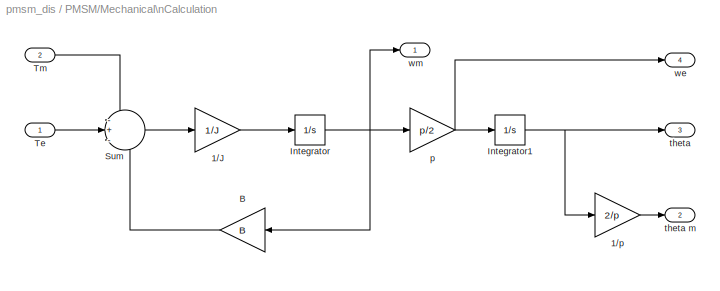
BLOCK [SubSystem] PMSM/Mechanical\nCalculation
  FunctionWithSeparateData = off
  MaskHideContents = off
  MinAlgLoopOccurrences = off
  Opaque = off
  Ports = [2, 4]
  PropExecContextOutsideSubsystem = off
  RTWSystemCode = Auto
  RequestExecContextInheritance = off
BLOCK [Gain] PMSM/Mechanical\nCalculation/1//J
  Gain = 1/J
  OutDataType = fixdt(1, 16)
  OutDataTypeMode = Inherit via internal rule
  OutDataTypeStr = Inherit: Inherit via internal rule
  OutScaling = 2^0
  ParamDataTypeStr = Inherit: Inherit via internal rule
  ParameterDataType = fixdt(1, 16)
  ParameterDataTypeMode = Inherit via internal rule
  ParameterScaling = 2^0
  SaturateOnIntegerOverflow = off
BLOCK [Gain] PMSM/Mechanical\nCalculation/1//p
  Gain = 2/p
  OutDataType = fixdt(1, 16)
  OutDataTypeMode = Inherit via internal rule
  OutDataTypeStr = Inherit: Inherit via internal rule
  OutScaling = 2^0
  ParamDataTypeStr = Inherit: Inherit via internal rule
  ParameterDataType = fixdt(1, 16)
  ParameterDataTypeMode = Inherit via internal rule
  ParameterScaling = 2^0
  SaturateOnIntegerOverflow = off
BLOCK [Gain] PMSM/Mechanical\nCalculation/B
  Gain = B
  OutDataType = fixdt(1, 16)
  OutDataTypeMode = Inherit via internal rule
  OutDataTypeStr = Inherit: Inherit via internal rule
  OutScaling = 2^0
  ParamDataTypeStr = Inherit: Inherit via internal rule
  ParameterDataType = fixdt(1, 16)
  ParameterDataTypeMode = Inherit via internal rule
  ParameterScaling = 2^0
  SaturateOnIntegerOverflow = off
BLOCK [Integrator] PMSM/Mechanical\nCalculation/Integrator
  Ports = [1, 1]
BLOCK [Integrator] PMSM/Mechanical\nCalculation/Integrator1
  Ports = [1, 1]
BLOCK [Sum] PMSM/Mechanical\nCalculation/Sum
  IconShape = round
  InputSameDT = off
  Inputs = -+-
  OutDataType = fixdt(1, 16)
  OutDataTypeMode = Inherit via internal rule
  OutDataTypeStr = Inherit: Inherit via internal rule
  OutScaling = 2^0
  Ports = [3, 1]
  SaturateOnIntegerOverflow = off
BLOCK [Inport] PMSM/Mechanical\nCalculation/Te
  IconDisplay = Port number
  OutDataType = fixdt(1, 16)
  OutScaling = 2^0
BLOCK [Inport] PMSM/Mechanical\nCalculation/Tm
  IconDisplay = Port number
  OutDataType = fixdt(1, 16)
  OutScaling = 2^0
  Port = 2
BLOCK [Gain] PMSM/Mechanical\nCalculation/p
  Gain = p/2
  OutDataType = fixdt(1, 16)
  OutDataTypeMode = Inherit via internal rule
  OutDataTypeStr = Inherit: Inherit via internal rule
  OutScaling = 2^0
  ParamDataTypeStr = Inherit: Inherit via internal rule
  ParameterDataType = fixdt(1, 16)
  ParameterDataTypeMode = Inherit via internal rule
  ParameterScaling = 2^0
  SaturateOnIntegerOverflow = off
BLOCK [Outport] PMSM/Mechanical\nCalculation/theta
  IconDisplay = Port number
  Port = 3
BLOCK [Outport] PMSM/Mechanical\nCalculation/theta m
  IconDisplay = Port number
  Port = 2
BLOCK [Outport] PMSM/Mechanical\nCalculation/we
  IconDisplay = Port number
  Port = 4
BLOCK [Outport] PMSM/Mechanical\nCalculation/wm
  IconDisplay = Port number
BLOCK [Inport] PMSM/Tm
  IconDisplay = Port number
  OutDataType = sfix(16)
  OutScaling = 2^0
BLOCK [SubSystem] PMSM/Torque\nCalculation
  FunctionWithSeparateData = off
  MaskHideContents = off
  MinAlgLoopOccurrences = off
  Opaque = off
  Ports = [2, 1]
  PropExecContextOutsideSubsystem = off
  RTWSystemCode = Auto
  RequestExecContextInheritance = off
BLOCK [Gain] PMSM/Torque\nCalculation/1.5 P
  Gain = 1.5*p/2
  OutDataType = fixdt(1, 16)
  OutDataTypeMode = Inherit via internal rule
  OutDataTypeStr = Inherit: Inherit via internal rule
  OutScaling = 2^0
  ParamDataTypeStr = Inherit: Inherit via internal rule
  ParameterDataType = fixdt(1, 16)
  ParameterDataTypeMode = Inherit via internal rule
  ParameterScaling = 2^0
  SaturateOnIntegerOverflow = off
BLOCK [Inport] PMSM/Torque\nCalculation/Id
  IconDisplay = Port number
  Port = 2
BLOCK [Inport] PMSM/Torque\nCalculation/Iq
  IconDisplay = Port number
BLOCK [Mux] PMSM/Torque\nCalculation/Mux
  DisplayOption = signals
  Inputs = 2
  Ports = [2, 1]
BLOCK [Outport] PMSM/Torque\nCalculation/Te
  IconDisplay = Port number
BLOCK [Fcn] PMSM/Torque\nCalculation/Torque calculation
  Expr = flux*u(1)+(Ld - Lq)*u(1)*u*(2)
BLOCK [Inport] PMSM/Va
  IconDisplay = Port number
  Port = 2
BLOCK [Inport] PMSM/Vb
  IconDisplay = Port number
  Port = 3
BLOCK [Inport] PMSM/Vc
  IconDisplay = Port number
  Port = 4
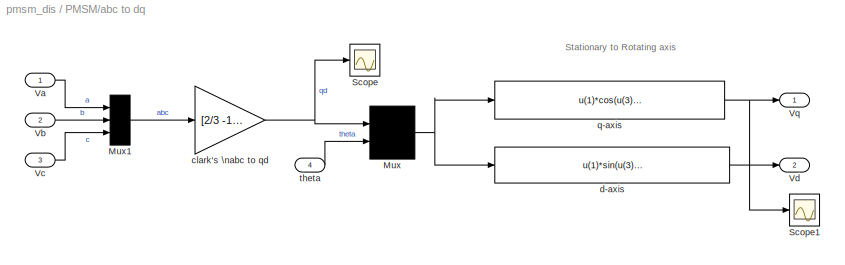
BLOCK [SubSystem] PMSM/abc to dq
  FunctionWithSeparateData = off
  MaskHideContents = off
  MinAlgLoopOccurrences = off
  Opaque = off
  Ports = [4, 2]
  PropExecContextOutsideSubsystem = off
  RTWSystemCode = Auto
  RequestExecContextInheritance = off
BLOCK [Mux] PMSM/abc to dq/Mux
  DisplayOption = signals
  Inputs = 2
  Ports = [2, 1]
BLOCK [Mux] PMSM/abc to dq/Mux1
  DisplayOption = signals
  Inputs = 3
  Ports = [3, 1]
BLOCK [Scope] PMSM/abc to dq/Scope
  DataFormat = StructureWithTime
  Floating = off
  LimitDataPoints = off
  NumInputPorts = 1
  Ports = [1]
  SampleTime = 0
  SaveName = ScopeData1
BLOCK [Scope] PMSM/abc to dq/Scope1
  DataFormat = StructureWithTime
  Floating = off
  LimitDataPoints = off
  NumInputPorts = 1
  Ports = [1]
  SampleTime = 0
  SaveName = ScopeData2
  ZoomMode = xonly
BLOCK [Inport] PMSM/abc to dq/Va
  IconDisplay = Port number
BLOCK [Inport] PMSM/abc to dq/Vb
  IconDisplay = Port number
  Port = 2
BLOCK [Inport] PMSM/abc to dq/Vc
  IconDisplay = Port number
  Port = 3
BLOCK [Outport] PMSM/abc to dq/Vd
  IconDisplay = Port number
  Port = 2
BLOCK [Outport] PMSM/abc to dq/Vq
  IconDisplay = Port number
BLOCK [Gain] PMSM/abc to dq/clark's \nabc to qd
  Gain = [2/3 -1/3 -1/3;0 -1/sqrt(3) 1/sqrt(3)]
  Multiplication = Matrix(K*u)
  OutDataType = fixdt(1, 16)
  OutDataTypeMode = Inherit via internal rule
  OutDataTypeStr = Inherit: Inherit via internal rule
  OutScaling = 2^0
  ParamDataTypeStr = Inherit: Inherit via internal rule
  ParameterDataType = fixdt(1, 16)
  ParameterDataTypeMode = Inherit via internal rule
  ParameterScaling = 2^0
  SaturateOnIntegerOverflow = off
BLOCK [Fcn] PMSM/abc to dq/d-axis
  Expr = u(1)*sin(u(3)) + u(2)*cos(u(3))
BLOCK [Fcn] PMSM/abc to dq/q-axis
  Expr = u(1)*cos(u(3)) - u(2)*sin(u(3))
BLOCK [Inport] PMSM/abc to dq/theta
  IconDisplay = Port number
  Port = 4
BLOCK [SubSystem] PMSM/dq to abc
  FunctionWithSeparateData = off
  MaskHideContents = off
  MinAlgLoopOccurrences = off
  Opaque = off
  Ports = [3, 1]
  PropExecContextOutsideSubsystem = off
  RTWSystemCode = Auto
  RequestExecContextInheritance = off
BLOCK [Outport] PMSM/dq to abc/Iabc
  IconDisplay = Port number
BLOCK [Inport] PMSM/dq to abc/Id_e
  IconDisplay = Port number
  Port = 2
BLOCK [Inport] PMSM/dq to abc/Iq_e
  IconDisplay = Port number
BLOCK [Mux] PMSM/dq to abc/Mux
  DisplayOption = signals
  Inputs = 3
  Ports = [3, 1]
BLOCK [Mux] PMSM/dq to abc/Mux1
  DisplayOption = signals
  Inputs = 2
  Ports = [2, 1]
BLOCK [Gain] PMSM/dq to abc/clark's\ndq to abc
  Gain = [1 0;-1/2 -sqrt(3)/2;-1/2 sqrt(3)/2]
  Multiplication = Matrix(K*u)
  OutDataType = fixdt(1, 16)
  OutDataTypeMode = Inherit via internal rule
  OutDataTypeStr = Inherit: Inherit via internal rule
  OutScaling = 2^0
  ParamDataTypeStr = Inherit: Inherit via internal rule
  ParameterDataType = fixdt(1, 16)
  ParameterDataTypeMode = Inherit via internal rule
  ParameterScaling = 2^0
  SaturateOnIntegerOverflow = off
BLOCK [Fcn] PMSM/dq to abc/d-axis
  Expr = -u(1)*sin(u(3)) + u(2)*cos(u(3))
BLOCK [Fcn] PMSM/dq to abc/q-axis
  Expr = u(1)*cos(u(3)) + u(2)*sin(u(3))
BLOCK [Inport] PMSM/dq to abc/theta
  IconDisplay = Port number
  Port = 3
BLOCK [Outport] PMSM/m
  IconDisplay = Port number
  OutDataType = fixdt(1, 16)
  OutScaling = 2^0
BLOCK [SubSystem] PMSM/measurement
  FunctionWithSeparateData = off
  MaskHideContents = off
  MinAlgLoopOccurrences = off
  Opaque = off
  Ports = [4, 1]
  PropExecContextOutsideSubsystem = off
  RTWSystemCode = Auto
  RequestExecContextInheritance = off
BLOCK [BusCreator] PMSM/measurement/Bus\nCreator
  DisplayOption = bar
  Inputs = 6
  Ports = [6, 1]
BLOCK [Demux] PMSM/measurement/Demux
  DisplayOption = bar
  Outputs = 3
  Ports = [1, 3]
BLOCK [Inport] PMSM/measurement/Iabc
  IconDisplay = Port number
  OutDataType = fixdt(1, 16)
  OutScaling = 2^0
BLOCK [Inport] PMSM/measurement/Te
  IconDisplay = Port number
  OutDataType = fixdt(1, 16)
  OutScaling = 2^0
  Port = 2
BLOCK [Outport] PMSM/measurement/m
  IconDisplay = Port number
  OutDataType = fixdt(1, 16)
  OutScaling = 2^0
BLOCK [Inport] PMSM/measurement/theta_m
  IconDisplay = Port number
  OutDataType = fixdt(1, 16)
  OutScaling = 2^0
  Port = 4
BLOCK [Inport] PMSM/measurement/wm
  IconDisplay = Port number
  OutDataType = fixdt(1, 16)
  OutScaling = 2^0
  Port = 3
BLOCK [Scope] Scope2
  DataFormat = StructureWithTime
  Floating = off
  MaxDataPoints = 5000000
  NumInputPorts = 3
  Ports = [3]
  SampleTime = Ts
  TimeRange = 0.5
  YMax = 80~140~400
  YMin = -80~-20~-300
BLOCK [Sin] Sine Wave
  Amplitude = 220*sqrt(2)
  Bias = 0
  Frequency = 2*pi*50
  Offset = 0
  Phase = 0
  Ports = [0, 1]
  SampleTime = Ts
  Samples = 10
BLOCK [Sin] Sine Wave1
  Amplitude = 220*sqrt(2)
  Bias = 0
  Frequency = 2*pi*50
  Offset = 0
  Phase = -2*pi/3
  Ports = [0, 1]
  SampleTime = Ts
  Samples = 10
BLOCK [Sin] Sine Wave2
  Amplitude = 220*sqrt(2)
  Bias = 0
  Frequency = 2*pi*50
  Offset = 0
  Phase = 2*pi/3
  Ports = [0, 1]
  SampleTime = Ts
  Samples = 10
ANNOTATION (root): BY \nsrikanth dakoju\nemail: <email>
ANNOTATION (root): Permanent Magent Synchronous Motor
ANNOTATION (root): ctrl+u to look under mask
ANNOTATION PMSM/abc to dq: Stationary to Rotating axis
ANNOTATION PMSM/dq to abc: Rotaional to Stationary
LINE Bus\nSelector1:1 -> Scope2:1
LINE Bus\nSelector1:2 -> Scope2:2
LINE Bus\nSelector1:3 -> Scope2:3
LINE Constant:1 -> PMSM:1
LINE PMSM/Id, Iq \nCalculation/Id cal/1//Ld:1 -> PMSM/Id, Iq \nCalculation/Id cal/Sum:3
NET PMSM/Id, Iq \nCalculation/Id cal/Integrator:1 -> PMSM/Id, Iq \nCalculation/Id cal/Id:1, PMSM/Id, Iq \nCalculation/Id cal/Rs//Ld:1
LINE PMSM/Id, Iq \nCalculation/Id cal/Iq:1 -> PMSM/Id, Iq \nCalculation/Id cal/Product:1
LINE PMSM/Id, Iq \nCalculation/Id cal/Lq//Ld:1 -> PMSM/Id, Iq \nCalculation/Id cal/Sum:2
LINE PMSM/Id, Iq \nCalculation/Id cal/Product:1 -> PMSM/Id, Iq \nCalculation/Id cal/Lq//Ld:1
LINE PMSM/Id, Iq \nCalculation/Id cal/Rs//Ld:1 -> PMSM/Id, Iq \nCalculation/Id cal/Sum:1
LINE PMSM/Id, Iq \nCalculation/Id cal/Sum:1 -> PMSM/Id, Iq \nCalculation/Id cal/Integrator:1
LINE PMSM/Id, Iq \nCalculation/Id cal/Vd:1 -> PMSM/Id, Iq \nCalculation/Id cal/1//Ld:1
LINE PMSM/Id, Iq \nCalculation/Id cal/we:1 -> PMSM/Id, Iq \nCalculation/Id cal/Product:2
NET PMSM/Id, Iq \nCalculation/Id cal:1 -> PMSM/Id, Iq \nCalculation/Id:1, PMSM/Id, Iq \nCalculation/Iq cal:1
LINE PMSM/Id, Iq \nCalculation/Iq cal/1//Lq:1 -> PMSM/Id, Iq \nCalculation/Iq cal/Sum:4
LINE PMSM/Id, Iq \nCalculation/Iq cal/Id:1 -> PMSM/Id, Iq \nCalculation/Iq cal/Product:1
NET PMSM/Id, Iq \nCalculation/Iq cal/Integrator:1 -> PMSM/Id, Iq \nCalculation/Iq cal/Iq:1, PMSM/Id, Iq \nCalculation/Iq cal/Rs//Lq:1
LINE PMSM/Id, Iq \nCalculation/Iq cal/Ld//Lq:1 -> PMSM/Id, Iq \nCalculation/Iq cal/Sum:2
LINE PMSM/Id, Iq \nCalculation/Iq cal/Product:1 -> PMSM/Id, Iq \nCalculation/Iq cal/Ld//Lq:1
LINE PMSM/Id, Iq \nCalculation/Iq cal/Rs//Lq:1 -> PMSM/Id, Iq \nCalculation/Iq cal/Sum:1
LINE PMSM/Id, Iq \nCalculation/Iq cal/Sum:1 -> PMSM/Id, Iq \nCalculation/Iq cal/Integrator:1
LINE PMSM/Id, Iq \nCalculation/Iq cal/Vq:1 -> PMSM/Id, Iq \nCalculation/Iq cal/1//Lq:1
LINE PMSM/Id, Iq \nCalculation/Iq cal/shi_f//Lq:1 -> PMSM/Id, Iq \nCalculation/Iq cal/Sum:3
NET PMSM/Id, Iq \nCalculation/Iq cal/we:1 -> PMSM/Id, Iq \nCalculation/Iq cal/Product:2, PMSM/Id, Iq \nCalculation/Iq cal/shi_f//Lq:1
NET PMSM/Id, Iq \nCalculation/Iq cal:1 -> PMSM/Id, Iq \nCalculation/Id cal:1, PMSM/Id, Iq \nCalculation/Iq:1
LINE PMSM/Id, Iq \nCalculation/Vd:1 -> PMSM/Id, Iq \nCalculation/Id cal:3
LINE PMSM/Id, Iq \nCalculation/Vq:1 -> PMSM/Id, Iq \nCalculation/Iq cal:2
NET PMSM/Id, Iq \nCalculation/we:1 -> PMSM/Id, Iq \nCalculation/Id cal:2, PMSM/Id, Iq \nCalculation/Iq cal:3
NET PMSM/Id, Iq \nCalculation:1 -> PMSM/Torque\nCalculation:1, PMSM/dq to abc:1
NET PMSM/Id, Iq \nCalculation:2 -> PMSM/Torque\nCalculation:2, PMSM/dq to abc:2
LINE PMSM/Mechanical\nCalculation/1//J:1 -> PMSM/Mechanical\nCalculation/Integrator:1
LINE PMSM/Mechanical\nCalculation/1//p:1 -> PMSM/Mechanical\nCalculation/theta m:1
LINE PMSM/Mechanical\nCalculation/B:1 -> PMSM/Mechanical\nCalculation/Sum:3
NET PMSM/Mechanical\nCalculation/Integrator1:1 -> PMSM/Mechanical\nCalculation/1//p:1, PMSM/Mechanical\nCalculation/theta:1
NET PMSM/Mechanical\nCalculation/Integrator:1 -> PMSM/Mechanical\nCalculation/B:1, PMSM/Mechanical\nCalculation/p:1, PMSM/Mechanical\nCalculation/wm:1
LINE PMSM/Mechanical\nCalculation/Sum:1 -> PMSM/Mechanical\nCalculation/1//J:1
LINE PMSM/Mechanical\nCalculation/Te:1 -> PMSM/Mechanical\nCalculation/Sum:2
LINE PMSM/Mechanical\nCalculation/Tm:1 -> PMSM/Mechanical\nCalculation/Sum:1
NET PMSM/Mechanical\nCalculation/p:1 -> PMSM/Mechanical\nCalculation/Integrator1:1, PMSM/Mechanical\nCalculation/we:1
LINE PMSM/Mechanical\nCalculation:1 -> PMSM/measurement:3
LINE PMSM/Mechanical\nCalculation:2 -> PMSM/measurement:4
NET PMSM/Mechanical\nCalculation:3 -> PMSM/abc to dq:4, PMSM/dq to abc:3
LINE PMSM/Mechanical\nCalculation:4 -> PMSM/Id, Iq \nCalculation:3
LINE PMSM/Tm:1 -> PMSM/Mechanical\nCalculation:2
LINE PMSM/Torque\nCalculation/1.5 P:1 -> PMSM/Torque\nCalculation/Torque calculation:1
LINE PMSM/Torque\nCalculation/Id:1 -> PMSM/Torque\nCalculation/Mux:2
LINE PMSM/Torque\nCalculation/Iq:1 -> PMSM/Torque\nCalculation/Mux:1
LINE PMSM/Torque\nCalculation/Mux:1 -> PMSM/Torque\nCalculation/1.5 P:1
LINE PMSM/Torque\nCalculation/Torque calculation:1 -> PMSM/Torque\nCalculation/Te:1
NET PMSM/Torque\nCalculation:1 -> PMSM/Mechanical\nCalculation:1, PMSM/measurement:2
LINE PMSM/Va:1 -> PMSM/abc to dq:1
LINE PMSM/Vb:1 -> PMSM/abc to dq:2
LINE PMSM/Vc:1 -> PMSM/abc to dq:3
LINE PMSM/abc to dq/Mux1:1 -> PMSM/abc to dq/clark's \nabc to qd:1
NET PMSM/abc to dq/Mux:1 -> PMSM/abc to dq/d-axis:1, PMSM/abc to dq/q-axis:1
LINE PMSM/abc to dq/Va:1 -> PMSM/abc to dq/Mux1:1
LINE PMSM/abc to dq/Vb:1 -> PMSM/abc to dq/Mux1:2
LINE PMSM/abc to dq/Vc:1 -> PMSM/abc to dq/Mux1:3
NET PMSM/abc to dq/clark's \nabc to qd:1 -> PMSM/abc to dq/Mux:1, PMSM/abc to dq/Scope:1
LINE PMSM/abc to dq/d-axis:1 -> PMSM/abc to dq/Vd:1
NET PMSM/abc to dq/q-axis:1 -> PMSM/abc to dq/Scope1:1, PMSM/abc to dq/Vq:1
LINE PMSM/abc to dq/theta:1 -> PMSM/abc to dq/Mux:2
LINE PMSM/abc to dq:1 -> PMSM/Id, Iq \nCalculation:1
LINE PMSM/abc to dq:2 -> PMSM/Id, Iq \nCalculation:2
LINE PMSM/dq to abc/Id_e:1 -> PMSM/dq to abc/Mux:2
LINE PMSM/dq to abc/Iq_e:1 -> PMSM/dq to abc/Mux:1
LINE PMSM/dq to abc/Mux1:1 -> PMSM/dq to abc/clark's\ndq to abc:1
NET PMSM/dq to abc/Mux:1 -> PMSM/dq to abc/d-axis:1, PMSM/dq to abc/q-axis:1
LINE PMSM/dq to abc/clark's\ndq to abc:1 -> PMSM/dq to abc/Iabc:1
LINE PMSM/dq to abc/d-axis:1 -> PMSM/dq to abc/Mux1:2
LINE PMSM/dq to abc/q-axis:1 -> PMSM/dq to abc/Mux1:1
LINE PMSM/dq to abc/theta:1 -> PMSM/dq to abc/Mux:3
LINE PMSM/dq to abc:1 -> PMSM/measurement:1
LINE PMSM/measurement/Bus\nCreator:1 -> PMSM/measurement/m:1
LINE PMSM/measurement/Demux:1 -> PMSM/measurement/Bus\nCreator:1
LINE PMSM/measurement/Demux:2 -> PMSM/measurement/Bus\nCreator:2
LINE PMSM/measurement/Demux:3 -> PMSM/measurement/Bus\nCreator:3
LINE PMSM/measurement/Iabc:1 -> PMSM/measurement/Demux:1
LINE PMSM/measurement/Te:1 -> PMSM/measurement/Bus\nCreator:4
LINE PMSM/measurement/theta_m:1 -> PMSM/measurement/Bus\nCreator:6
LINE PMSM/measurement/wm:1 -> PMSM/measurement/Bus\nCreator:5
LINE PMSM/measurement:1 -> PMSM/m:1
LINE PMSM:1 -> Bus\nSelector1:1
LINE Sine Wave1:1 -> PMSM:3
LINE Sine Wave2:1 -> PMSM:4
LINE Sine Wave:1 -> PMSM:2
note: NET lines group one-source signal fan-out (src -> all destinations, sorted); 1:1 wires keep LINE
